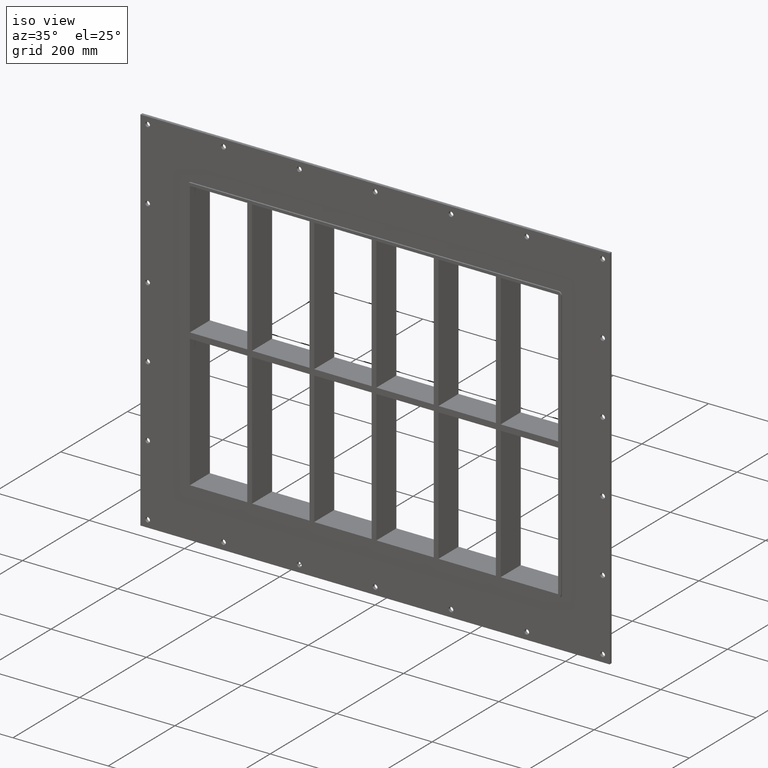
[diagram: clean part render]
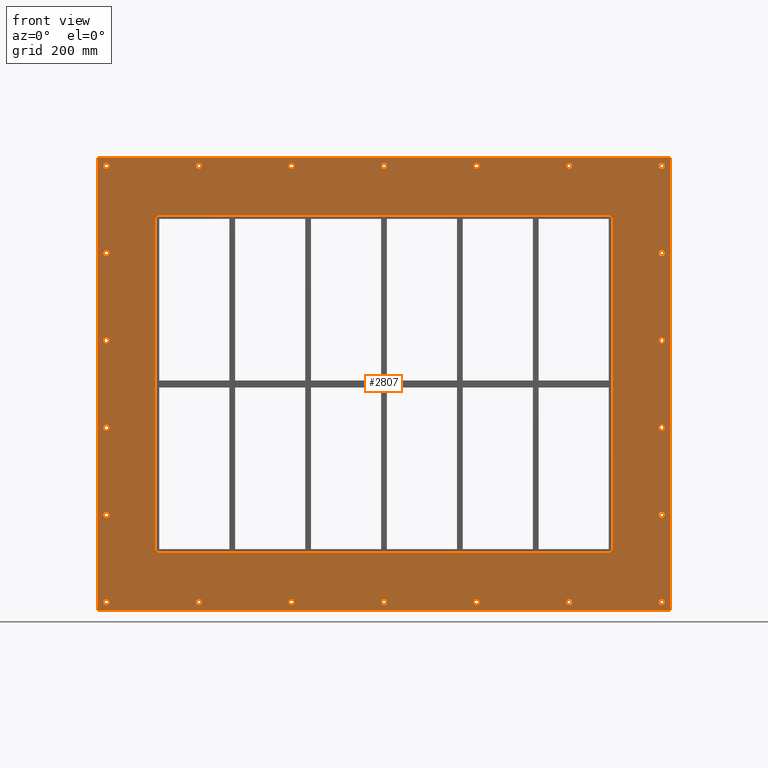
[diagram: tour spotlight — one face highlighted and labeled with its STEP entity id]
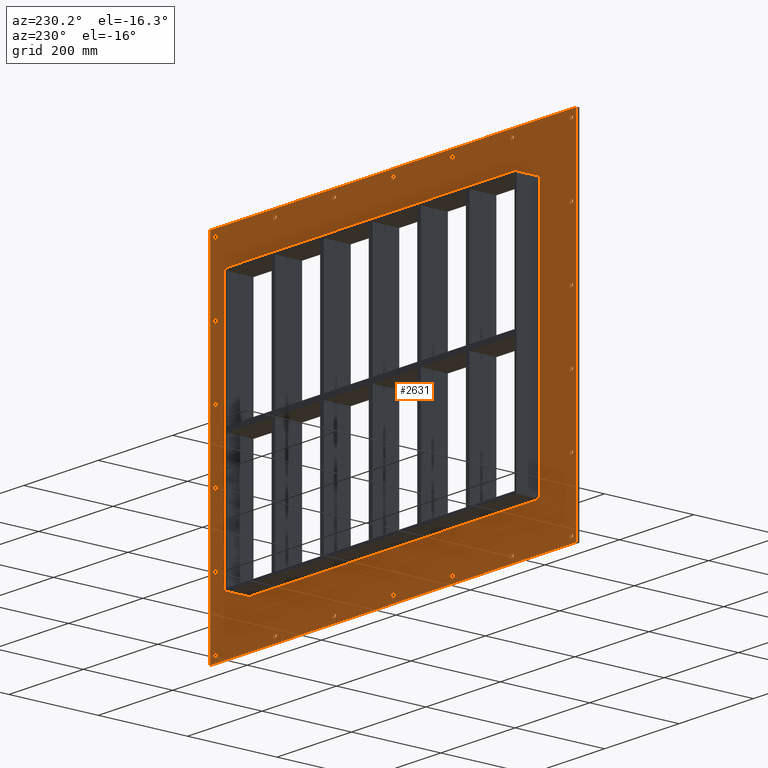
[diagram: tour spotlight — one face highlighted and labeled with its STEP entity id]
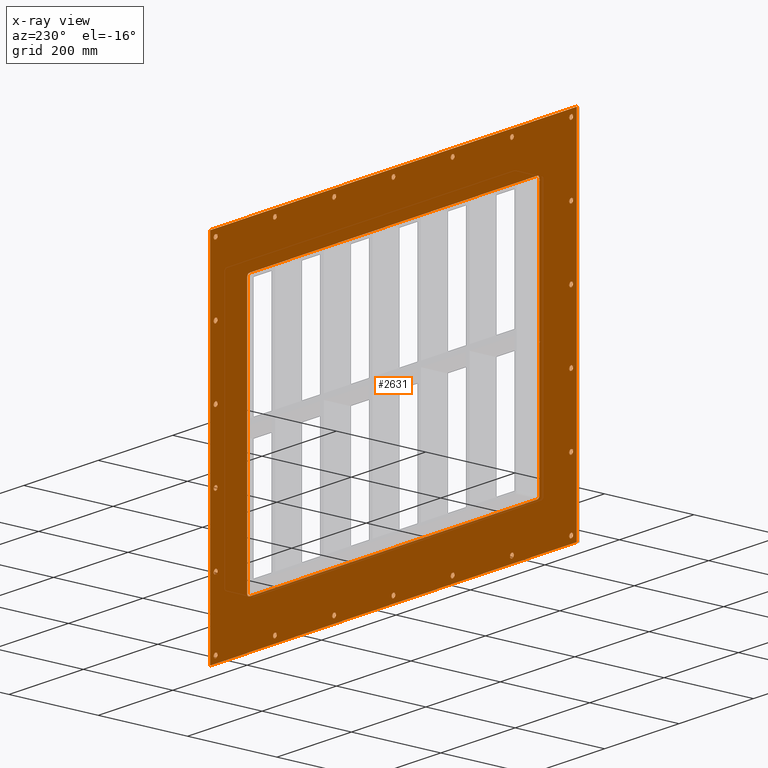
[diagram: x-ray of the same camera — body ghosted, this tour face saturated]
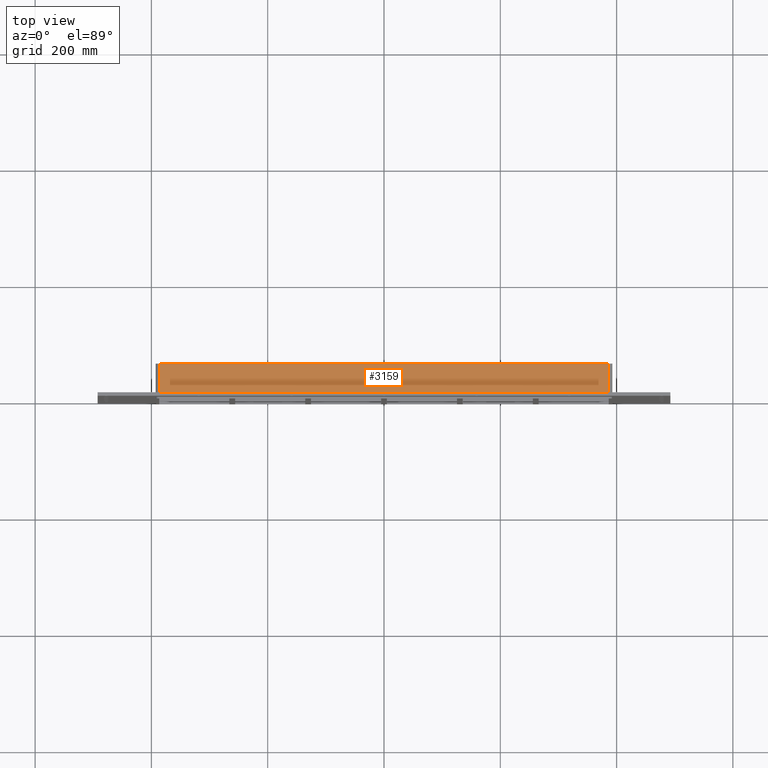
[diagram: tour spotlight — one face highlighted and labeled with its STEP entity id]
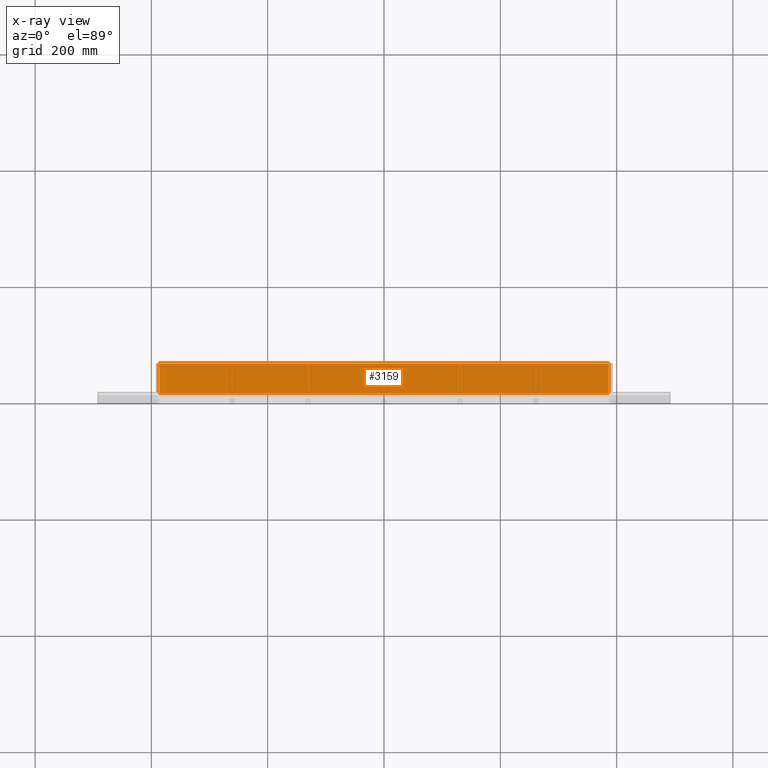
[diagram: x-ray of the same camera — body ghosted, this tour face saturated]
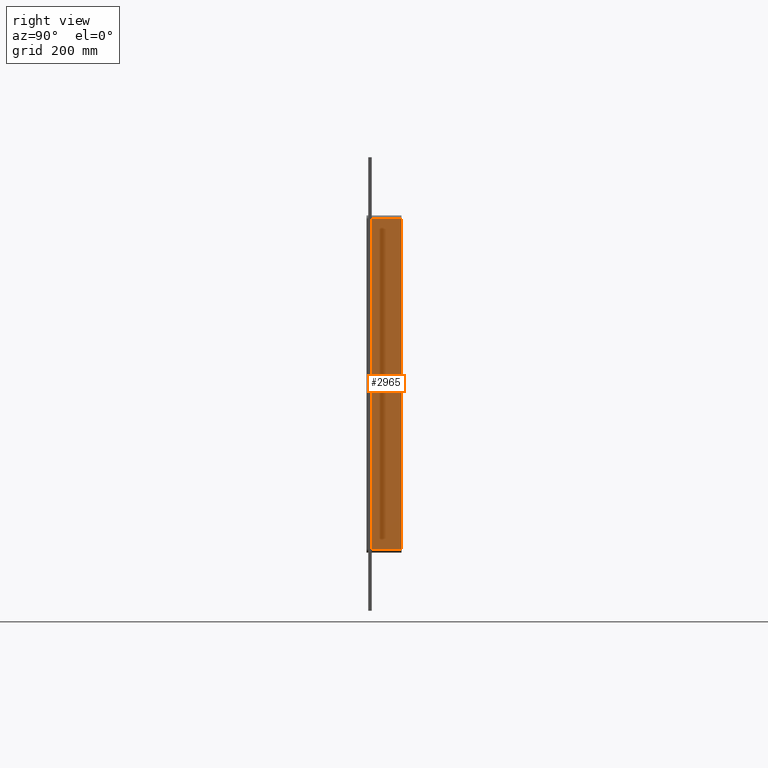
[diagram: tour spotlight — one face highlighted and labeled with its STEP entity id]
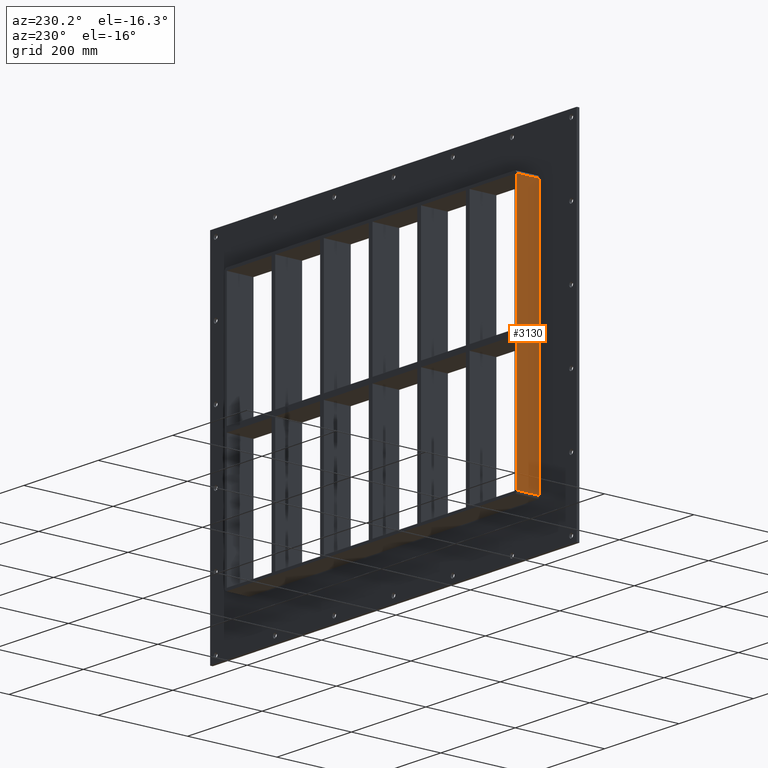
[diagram: tour spotlight — one face highlighted and labeled with its STEP entity id]
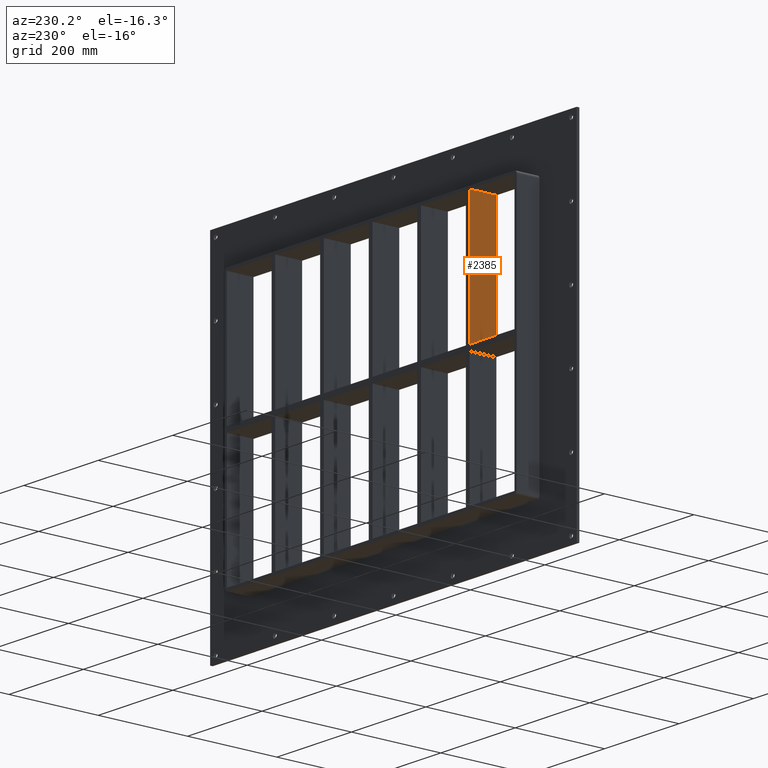
[diagram: tour spotlight — one face highlighted and labeled with its STEP entity id]
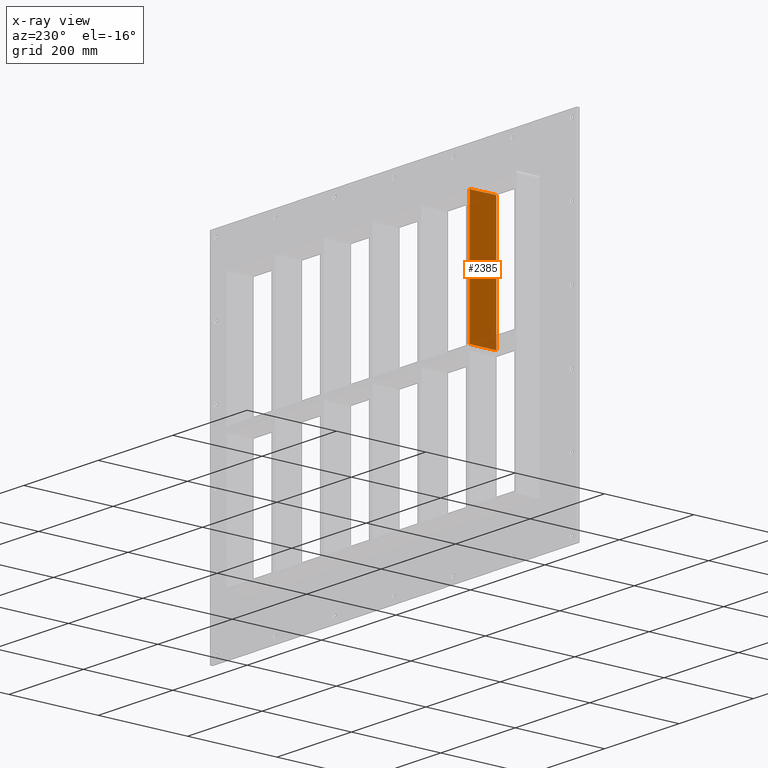
[diagram: x-ray of the same camera — body ghosted, this tour face saturated]
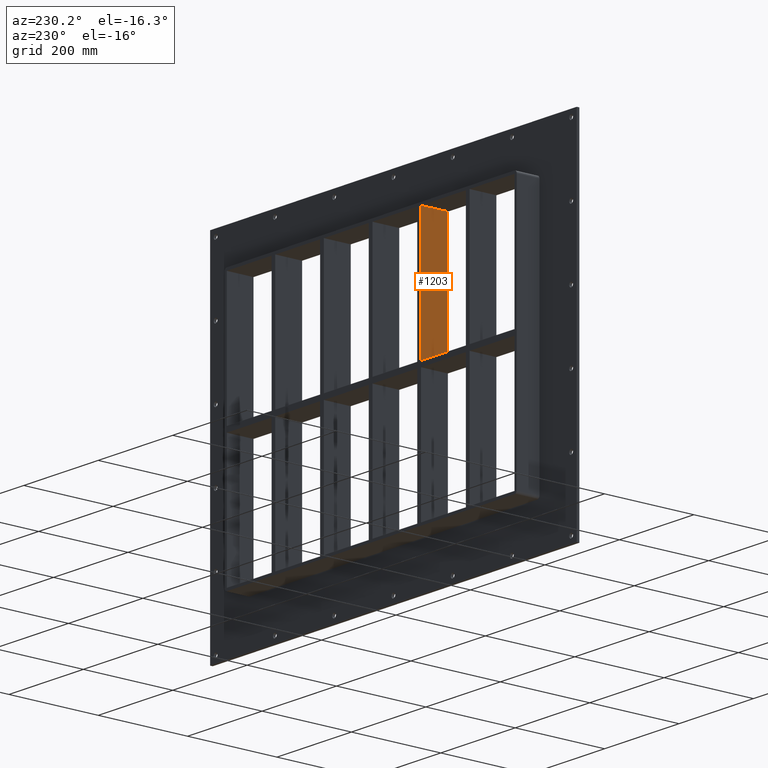
[diagram: tour spotlight — one face highlighted and labeled with its STEP entity id]
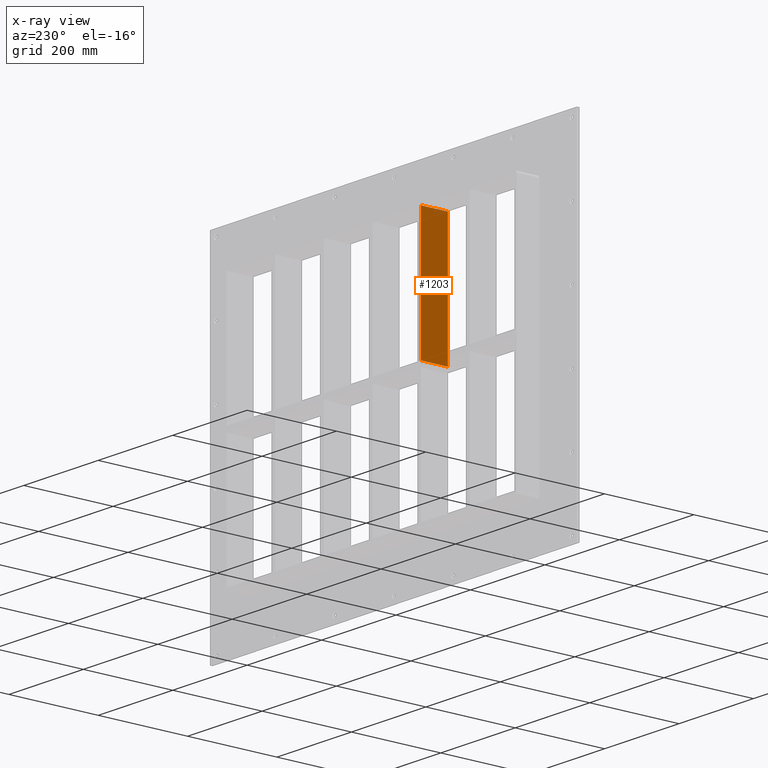
[diagram: x-ray of the same camera — body ghosted, this tour face saturated]
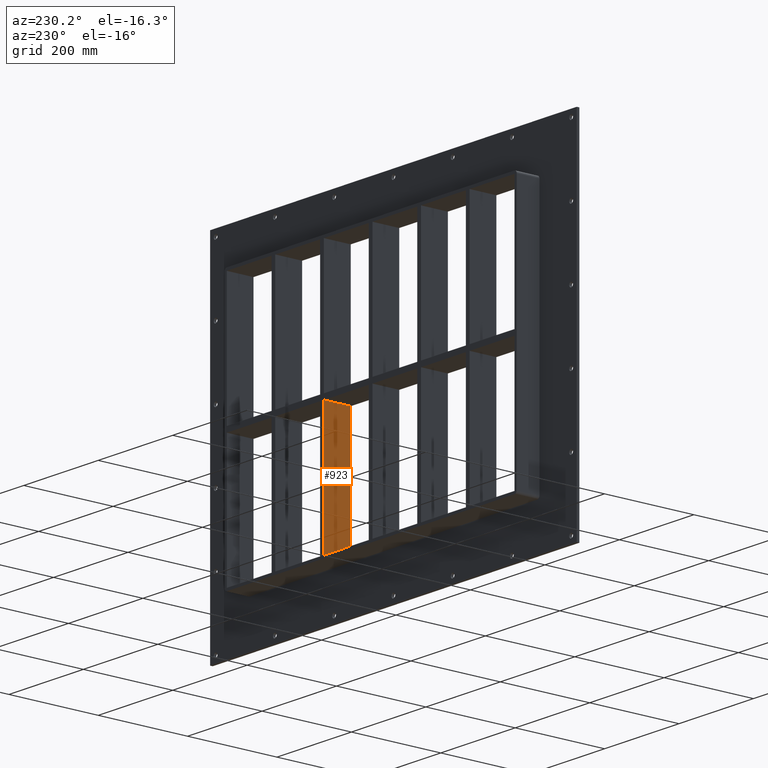
[diagram: tour spotlight — one face highlighted and labeled with its STEP entity id]
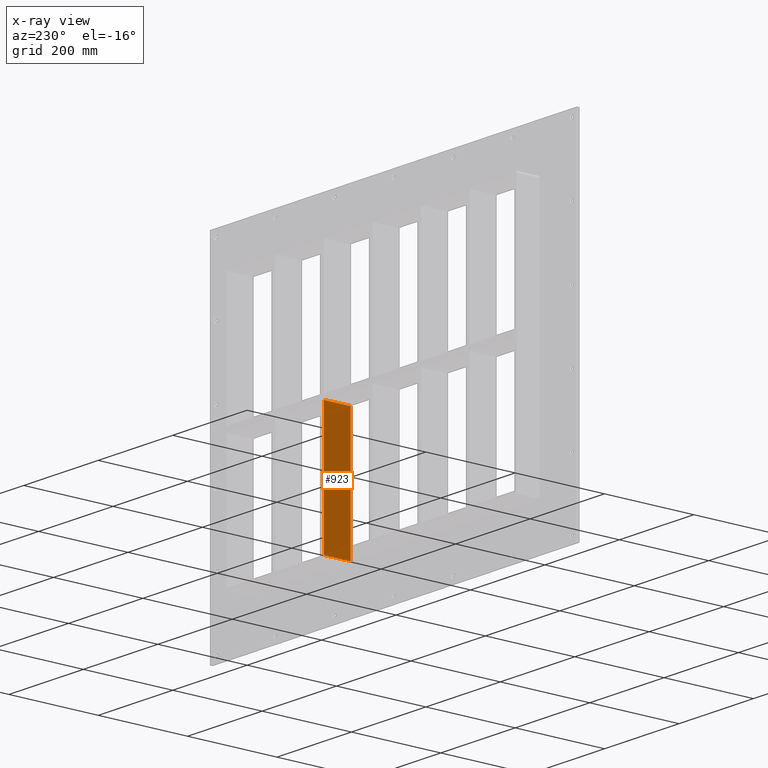
[diagram: x-ray of the same camera — body ghosted, this tour face saturated]
A machine part: a face-by-face anatomy tour. The part has 94 B-rep faces; the first image is the clean iso view, then the 8 largest visible faces are spotlighted one at a time (largest first), each with its STEP entity span.

Face 1 — front view, entity #2807. In plain terms, the highlighted planar face has unit normal (0, 1, 0).
Definition (entity closure, byte-faithful):
#84=CARTESIAN_POINT('',(-472.50000000000028,0.0,-375.0));
#85=VERTEX_POINT('',#84);
#86=CARTESIAN_POINT('',(-477.50000000000028,0.0,-375.0));
#87=DIRECTION('',(0.0,1.0,0.0));
#88=DIRECTION('',(1.0,0.0,0.0));
#89=AXIS2_PLACEMENT_3D('',#86,#87,#88);
#90=CIRCLE('',#89,5.0);
#91=EDGE_CURVE('',#85,#85,#90,.T.);
#112=CARTESIAN_POINT('',(482.6999999999997,0.0,-225.0));
#113=VERTEX_POINT('',#112);
#114=CARTESIAN_POINT('',(477.6999999999997,0.0,-225.0));
#115=DIRECTION('',(0.0,1.0,0.0));
#116=DIRECTION('',(1.0,0.0,0.0));
#117=AXIS2_PLACEMENT_3D('',#114,#115,#116);
#118=CIRCLE('',#117,5.0);
#119=EDGE_CURVE('',#113,#113,#118,.T.);
#140=CARTESIAN_POINT('',(-472.50000000000028,0.0,-225.0));
#141=VERTEX_POINT('',#140);
#142=CARTESIAN_POINT('',(-477.50000000000028,0.0,-225.0));
#143=DIRECTION('',(0.0,1.0,0.0));
#144=DIRECTION('',(1.0,0.0,0.0));
#145=AXIS2_PLACEMENT_3D('',#142,#143,#144);
#146=CIRCLE('',#145,5.0);
#147=EDGE_CURVE('',#141,#141,#146,.T.);
#168=CARTESIAN_POINT('',(482.6999999999997,0.0,-75.0));
#169=VERTEX_POINT('',#168);
#170=CARTESIAN_POINT('',(477.6999999999997,0.0,-75.0));
#171=DIRECTION('',(0.0,1.0,0.0));
#172=DIRECTION('',(1.0,0.0,0.0));
#173=AXIS2_PLACEMENT_3D('',#170,#171,#172);
#174=CIRCLE('',#173,5.0);
#175=EDGE_CURVE('',#169,#169,#174,.T.);
#196=CARTESIAN_POINT('',(-472.50000000000028,0.0,-75.0));
#197=VERTEX_POINT('',#196);
#198=CARTESIAN_POINT('',(-477.50000000000028,0.0,-75.0));
#199=DIRECTION('',(0.0,1.0,0.0));
#200=DIRECTION('',(1.0,0.0,0.0));
#201=AXIS2_PLACEMENT_3D('',#198,#199,#200);
#202=CIRCLE('',#201,5.0);
#203=EDGE_CURVE('',#197,#197,#202,.T.);
#224=CARTESIAN_POINT('',(482.6999999999997,0.0,75.0));
#225=VERTEX_POINT('',#224);
#226=CARTESIAN_POINT('',(477.6999999999997,0.0,75.0));
#227=DIRECTION('',(0.0,1.0,0.0));
#228=DIRECTION('',(1.0,0.0,0.0));
#229=AXIS2_PLACEMENT_3D('',#226,#227,#228);
#230=CIRCLE('',#229,5.0);
#231=EDGE_CURVE('',#225,#225,#230,.T.);
#252=CARTESIAN_POINT('',(-472.50000000000028,0.0,75.0));
#253=VERTEX_POINT('',#252);
#254=CARTESIAN_POINT('',(-477.50000000000028,0.0,75.0));
#255=DIRECTION('',(0.0,1.0,0.0));
#256=DIRECTION('',(1.0,0.0,0.0));
#257=AXIS2_PLACEMENT_3D('',#254,#255,#256);
#258=CIRCLE('',#257,5.0);
#259=EDGE_CURVE('',#253,#253,#258,.T.);
#280=CARTESIAN_POINT('',(482.6999999999997,0.0,225.0));
#281=VERTEX_POINT('',#280);
#282=CARTESIAN_POINT('',(477.6999999999997,0.0,225.0));
#283=DIRECTION('',(0.0,1.0,0.0));
#284=DIRECTION('',(1.0,0.0,0.0));
#285=AXIS2_PLACEMENT_3D('',#282,#283,#284);
#286=CIRCLE('',#285,5.0);
#287=EDGE_CURVE('',#281,#281,#286,.T.);
#308=CARTESIAN_POINT('',(-472.50000000000028,0.0,225.0));
#309=VERTEX_POINT('',#308);
#310=CARTESIAN_POINT('',(-477.50000000000028,0.0,225.0));
#311=DIRECTION('',(0.0,1.0,0.0));
#312=DIRECTION('',(1.0,0.0,0.0));
#313=AXIS2_PLACEMENT_3D('',#310,#311,#312);
#314=CIRCLE('',#313,5.0);
#315=EDGE_CURVE('',#309,#309,#314,.T.);
#336=CARTESIAN_POINT('',(-313.3000000000003,0.0,375.0));
#337=VERTEX_POINT('',#336);
#338=CARTESIAN_POINT('',(-318.3000000000003,0.0,375.0));
#339=DIRECTION('',(0.0,1.0,0.0));
#340=DIRECTION('',(1.0,0.0,0.0));
#341=AXIS2_PLACEMENT_3D('',#338,#339,#340);
#342=CIRCLE('',#341,5.0);
#343=EDGE_CURVE('',#337,#337,#342,.T.);
#364=CARTESIAN_POINT('',(-313.3000000000003,0.0,-375.0));
#365=VERTEX_POINT('',#364);
#366=CARTESIAN_POINT('',(-318.3000000000003,0.0,-375.0));
#367=DIRECTION('',(0.0,1.0,0.0));
#368=DIRECTION('',(1.0,0.0,0.0));
#369=AXIS2_PLACEMENT_3D('',#366,#367,#368);
#370=CIRCLE('',#369,5.0);
#371=EDGE_CURVE('',#365,#365,#370,.T.);
#392=CARTESIAN_POINT('',(-154.10000000000031,0.0,375.0));
#393=VERTEX_POINT('',#392);
#394=CARTESIAN_POINT('',(-159.10000000000031,0.0,375.0));
#395=DIRECTION('',(0.0,1.0,0.0));
#396=DIRECTION('',(1.0,0.0,0.0));
#397=AXIS2_PLACEMENT_3D('',#394,#395,#396);
#398=CIRCLE('',#397,5.0);
#399=EDGE_CURVE('',#393,#393,#398,.T.);
#420=CARTESIAN_POINT('',(-154.10000000000031,0.0,-375.0));
#421=VERTEX_POINT('',#420);
#422=CARTESIAN_POINT('',(-159.10000000000031,0.0,-375.0));
#423=DIRECTION('',(0.0,1.0,0.0));
#424=DIRECTION('',(1.0,0.0,0.0));
#425=AXIS2_PLACEMENT_3D('',#422,#423,#424);
#426=CIRCLE('',#425,5.0);
#427=EDGE_CURVE('',#421,#421,#426,.T.);
#448=CARTESIAN_POINT('',(5.099999999999714,0.0,375.0));
#449=VERTEX_POINT('',#448);
#450=CARTESIAN_POINT('',(0.099999999999714,0.0,375.0));
#451=DIRECTION('',(0.0,1.0,0.0));
#452=DIRECTION('',(1.0,0.0,0.0));
#453=AXIS2_PLACEMENT_3D('',#450,#451,#452);
#454=CIRCLE('',#453,5.0);
#455=EDGE_CURVE('',#449,#449,#454,.T.);
#476=CARTESIAN_POINT('',(5.099999999999714,0.0,-375.0));
#477=VERTEX_POINT('',#476);
#478=CARTESIAN_POINT('',(0.099999999999714,0.0,-375.0));
#479=DIRECTION('',(0.0,1.0,0.0));
#480=DIRECTION('',(1.0,0.0,0.0));
#481=AXIS2_PLACEMENT_3D('',#478,#479,#480);
#482=CIRCLE('',#481,5.0);
#483=EDGE_CURVE('',#477,#477,#482,.T.);
#504=CARTESIAN_POINT('',(164.29999999999964,0.0,375.0));
#505=VERTEX_POINT('',#504);
#506=CARTESIAN_POINT('',(159.29999999999967,0.0,375.0));
#507=DIRECTION('',(0.0,1.0,0.0));
#508=DIRECTION('',(1.0,0.0,0.0));
#509=AXIS2_PLACEMENT_3D('',#506,#507,#508);
#510=CIRCLE('',#509,5.0);
#511=EDGE_CURVE('',#505,#505,#510,.T.);
#532=CARTESIAN_POINT('',(164.29999999999964,0.0,-375.0));
#533=VERTEX_POINT('',#532);
#534=CARTESIAN_POINT('',(159.29999999999967,0.0,-375.0));
#535=DIRECTION('',(0.0,1.0,0.0));
#536=DIRECTION('',(1.0,0.0,0.0));
#537=AXIS2_PLACEMENT_3D('',#534,#535,#536);
#538=CIRCLE('',#537,5.0);
#539=EDGE_CURVE('',#533,#533,#538,.T.);
#560=CARTESIAN_POINT('',(323.49999999999966,0.0,375.0));
#561=VERTEX_POINT('',#560);
#562=CARTESIAN_POINT('',(318.49999999999966,0.0,375.0));
#563=DIRECTION('',(0.0,1.0,0.0));
#564=DIRECTION('',(1.0,0.0,0.0));
#565=AXIS2_PLACEMENT_3D('',#562,#563,#564);
#566=CIRCLE('',#565,5.0);
#567=EDGE_CURVE('',#561,#561,#566,.T.);
#588=CARTESIAN_POINT('',(323.49999999999966,0.0,-375.0));
#589=VERTEX_POINT('',#588);
#590=CARTESIAN_POINT('',(318.49999999999966,0.0,-375.0));
#591=DIRECTION('',(0.0,1.0,0.0));
#592=DIRECTION('',(1.0,0.0,0.0));
#593=AXIS2_PLACEMENT_3D('',#590,#591,#592);
#594=CIRCLE('',#593,5.0);
#595=EDGE_CURVE('',#589,#589,#594,.T.);
#616=CARTESIAN_POINT('',(482.6999999999997,0.0,-375.0));
#617=VERTEX_POINT('',#616);
#618=CARTESIAN_POINT('',(477.6999999999997,0.0,-375.0));
#619=DIRECTION('',(0.0,1.0,0.0));
#620=DIRECTION('',(1.0,0.0,0.0));
#621=AXIS2_PLACEMENT_3D('',#618,#619,#620);
#622=CIRCLE('',#621,5.0);
#623=EDGE_CURVE('',#617,#617,#622,.T.);
#644=CARTESIAN_POINT('',(-472.50000000000028,0.0,375.0));
#645=VERTEX_POINT('',#644);
#646=CARTESIAN_POINT('',(-477.50000000000028,0.0,375.0));
#647=DIRECTION('',(0.0,1.0,0.0));
#648=DIRECTION('',(1.0,0.0,0.0));
#649=AXIS2_PLACEMENT_3D('',#646,#647,#648);
#650=CIRCLE('',#649,5.0);
#651=EDGE_CURVE('',#645,#645,#650,.T.);
#672=CARTESIAN_POINT('',(482.6999999999997,0.0,375.0));
#673=VERTEX_POINT('',#672);
#674=CARTESIAN_POINT('',(477.6999999999997,0.0,375.0));
#675=DIRECTION('',(0.0,1.0,0.0));
#676=DIRECTION('',(1.0,0.0,0.0));
#677=AXIS2_PLACEMENT_3D('',#674,#675,#676);
#678=CIRCLE('',#677,5.0);
#679=EDGE_CURVE('',#673,#673,#678,.T.);
#2632=CARTESIAN_POINT('',(-1.932354E-014,0.0,3.864708E-014));
#2633=DIRECTION('',(0.0,1.0,0.0));
#2634=DIRECTION('',(0.0,0.0,1.0));
#2635=AXIS2_PLACEMENT_3D('',#2632,#2633,#2634);
#2636=PLANE('',#2635);
#2637=CARTESIAN_POINT('',(-492.50000000000028,0.0,390.00000000000006));
#2638=VERTEX_POINT('',#2637);
#2639=CARTESIAN_POINT('',(492.50000000000023,0.0,390.00000000000006));
#2640=VERTEX_POINT('',#2639);
#2641=CARTESIAN_POINT('',(-492.50000000000028,0.0,390.00000000000006));
#2642=DIRECTION('',(1.0,0.0,0.0));
#2643=VECTOR('',#2642,985.00000000000057);
#2644=LINE('',#2641,#2643);
#2645=EDGE_CURVE('',#2638,#2640,#2644,.T.);
#2646=ORIENTED_EDGE('',*,*,#2645,.F.);
#2647=CARTESIAN_POINT('',(-492.50000000000028,0.0,-390.0));
#2648=VERTEX_POINT('',#2647);
#2649=CARTESIAN_POINT('',(-492.50000000000028,0.0,-390.0));
#2650=DIRECTION('',(0.0,0.0,1.0));
#2651=VECTOR('',#2650,780.0);
#2652=LINE('',#2649,#2651);
#2653=EDGE_CURVE('',#2648,#2638,#2652,.T.);
#2654=ORIENTED_EDGE('',*,*,#2653,.F.);
#2655=CARTESIAN_POINT('',(492.50000000000023,0.0,-390.0));
#2656=VERTEX_POINT('',#2655);
#2657=CARTESIAN_POINT('',(492.50000000000023,0.0,-390.0));
#2658=DIRECTION('',(-1.0,0.0,0.0));
#2659=VECTOR('',#2658,985.00000000000057);
#2660=LINE('',#2657,#2659);
#2661=EDGE_CURVE('',#2656,#2648,#2660,.T.);
#2662=ORIENTED_EDGE('',*,*,#2661,.F.);
#2663=CARTESIAN_POINT('',(492.50000000000023,0.0,390.00000000000006));
#2664=DIRECTION('',(0.0,0.0,-1.0));
#2665=VECTOR('',#2664,780.0);
#2666=LINE('',#2663,#2665);
#2667=EDGE_CURVE('',#2640,#2656,#2666,.T.);
#2668=ORIENTED_EDGE('',*,*,#2667,.F.);
#2669=EDGE_LOOP('',(#2646,#2654,#2662,#2668));
#2670=FACE_OUTER_BOUND('',#2669,.T.);
#2671=ORIENTED_EDGE('',*,*,#91,.T.);
#2672=EDGE_LOOP('',(#2671));
#2673=FACE_BOUND('',#2672,.T.);
#2674=ORIENTED_EDGE('',*,*,#119,.T.);
#2675=EDGE_LOOP('',(#2674));
#2676=FACE_BOUND('',#2675,.T.);
#2677=ORIENTED_EDGE('',*,*,#147,.T.);
#2678=EDGE_LOOP('',(#2677));
#2679=FACE_BOUND('',#2678,.T.);
#2680=ORIENTED_EDGE('',*,*,#175,.T.);
#2681=EDGE_LOOP('',(#2680));
#2682=FACE_BOUND('',#2681,.T.);
#2683=ORIENTED_EDGE('',*,*,#203,.T.);
#2684=EDGE_LOOP('',(#2683));
#2685=FACE_BOUND('',#2684,.T.);
#2686=ORIENTED_EDGE('',*,*,#231,.T.);
#2687=EDGE_LOOP('',(#2686));
#2688=FACE_BOUND('',#2687,.T.);
#2689=ORIENTED_EDGE('',*,*,#259,.T.);
#2690=EDGE_LOOP('',(#2689));
#2691=FACE_BOUND('',#2690,.T.);
#2692=ORIENTED_EDGE('',*,*,#287,.T.);
#2693=EDGE_LOOP('',(#2692));
#2694=FACE_BOUND('',#2693,.T.);
#2695=ORIENTED_EDGE('',*,*,#315,.T.);
#2696=EDGE_LOOP('',(#2695));
#2697=FACE_BOUND('',#2696,.T.);
#2698=ORIENTED_EDGE('',*,*,#343,.T.);
#2699=EDGE_LOOP('',(#2698));
#2700=FACE_BOUND('',#2699,.T.);
#2701=ORIENTED_EDGE('',*,*,#371,.T.);
#2702=EDGE_LOOP('',(#2701));
#2703=FACE_BOUND('',#2702,.T.);
#2704=ORIENTED_EDGE('',*,*,#399,.T.);
#2705=EDGE_LOOP('',(#2704));
#2706=FACE_BOUND('',#2705,.T.);
#2707=ORIENTED_EDGE('',*,*,#427,.T.);
#2708=EDGE_LOOP('',(#2707));
#2709=FACE_BOUND('',#2708,.T.);
#2710=ORIENTED_EDGE('',*,*,#455,.T.);
#2711=EDGE_LOOP('',(#2710));
#2712=FACE_BOUND('',#2711,.T.);
#2713=ORIENTED_EDGE('',*,*,#483,.T.);
#2714=EDGE_LOOP('',(#2713));
#2715=FACE_BOUND('',#2714,.T.);
#2716=ORIENTED_EDGE('',*,*,#511,.T.);
#2717=EDGE_LOOP('',(#2716));
#2718=FACE_BOUND('',#2717,.T.);
#2719=ORIENTED_EDGE('',*,*,#539,.T.);
#2720=EDGE_LOOP('',(#2719));
#2721=FACE_BOUND('',#2720,.T.);
#2722=ORIENTED_EDGE('',*,*,#567,.T.);
#2723=EDGE_LOOP('',(#2722));
#2724=FACE_BOUND('',#2723,.T.);
#2725=ORIENTED_EDGE('',*,*,#595,.T.);
#2726=EDGE_LOOP('',(#2725));
#2727=FACE_BOUND('',#2726,.T.);
#2728=ORIENTED_EDGE('',*,*,#623,.T.);
#2729=EDGE_LOOP('',(#2728));
#2730=FACE_BOUND('',#2729,.T.);
#2731=ORIENTED_EDGE('',*,*,#651,.T.);
#2732=EDGE_LOOP('',(#2731));
#2733=FACE_BOUND('',#2732,.T.);
#2734=ORIENTED_EDGE('',*,*,#679,.T.);
#2735=EDGE_LOOP('',(#2734));
#2736=FACE_BOUND('',#2735,.T.);
#2737=CARTESIAN_POINT('',(-392.50000000000011,0.0,-284.0));
#2738=VERTEX_POINT('',#2737);
#2739=CARTESIAN_POINT('',(-386.50000000000006,0.0,-290.00000000000006));
#2740=VERTEX_POINT('',#2739);
#2741=CARTESIAN_POINT('',(-386.50000000000006,0.0,-284.0));
#2742=DIRECTION('',(0.0,-1.0,0.0));
#2743=DIRECTION('',(-0.707106781186552,0.0,-0.707106781186543));
#2744=AXIS2_PLACEMENT_3D('',#2741,#2742,#2743);
#2745=CIRCLE('',#2744,6.0);
#2746=EDGE_CURVE('',#2738,#2740,#2745,.T.);
#2747=ORIENTED_EDGE('',*,*,#2746,.F.);
#2748=CARTESIAN_POINT('',(-392.50000000000011,0.0,284.0));
#2749=VERTEX_POINT('',#2748);
#2750=CARTESIAN_POINT('',(-392.50000000000011,0.0,284.00000000000006));
#2751=DIRECTION('',(0.0,0.0,-1.0));
#2752=VECTOR('',#2751,568.0);
#2753=LINE('',#2750,#2752);
#2754=EDGE_CURVE('',#2749,#2738,#2753,.T.);
#2755=ORIENTED_EDGE('',*,*,#2754,.F.);
#2756=CARTESIAN_POINT('',(-386.50000000000023,0.0,290.00000000000006));
#2757=VERTEX_POINT('',#2756);
#2758=CARTESIAN_POINT('',(-386.50000000000023,0.0,284.0));
#2759=DIRECTION('',(0.0,-1.0,0.0));
#2760=DIRECTION('',(-0.707106781186543,0.0,0.707106781186552));
#2761=AXIS2_PLACEMENT_3D('',#2758,#2759,#2760);
#2762=CIRCLE('',#2761,6.000000000000001);
#2763=EDGE_CURVE('',#2757,#2749,#2762,.T.);
#2764=ORIENTED_EDGE('',*,*,#2763,.F.);
#2765=CARTESIAN_POINT('',(386.49999999999989,0.0,290.00000000000006));
#2766=VERTEX_POINT('',#2765);
#2767=CARTESIAN_POINT('',(386.49999999999994,0.0,290.00000000000006));
#2768=DIRECTION('',(-1.0,0.0,0.0));
#2769=VECTOR('',#2768,773.00000000000011);
#2770=LINE('',#2767,#2769);
#2771=EDGE_CURVE('',#2766,#2757,#2770,.T.);
#2772=ORIENTED_EDGE('',*,*,#2771,.F.);
#2773=CARTESIAN_POINT('',(392.5,0.0,284.0));
#2774=VERTEX_POINT('',#2773);
#2775=CARTESIAN_POINT('',(386.49999999999989,0.0,284.0));
#2776=DIRECTION('',(0.0,-1.0,0.0));
#2777=DIRECTION('',(0.707106781186552,0.0,0.707106781186543));
#2778=AXIS2_PLACEMENT_3D('',#2775,#2776,#2777);
#2779=CIRCLE('',#2778,6.0);
#2780=EDGE_CURVE('',#2774,#2766,#2779,.T.);
#2781=ORIENTED_EDGE('',*,*,#2780,.F.);
#2782=CARTESIAN_POINT('',(392.5,0.0,-284.0));
#2783=VERTEX_POINT('',#2782);
#2784=CARTESIAN_POINT('',(392.5,0.0,-284.0));
#2785=DIRECTION('',(0.0,0.0,1.0));
#2786=VECTOR('',#2785,568.0);
#2787=LINE('',#2784,#2786);
#2788=EDGE_CURVE('',#2783,#2774,#2787,.T.);
#2789=ORIENTED_EDGE('',*,*,#2788,.F.);
#2790=CARTESIAN_POINT('',(386.50000000000006,0.0,-290.00000000000006));
#2791=VERTEX_POINT('',#2790);
#2792=CARTESIAN_POINT('',(386.50000000000006,0.0,-284.0));
#2793=DIRECTION('',(0.0,-1.0,0.0));
#2794=DIRECTION('',(0.707106781186543,0.0,-0.707106781186552));
#2795=AXIS2_PLACEMENT_3D('',#2792,#2793,#2794);
#2796=CIRCLE('',#2795,6.000000000000001);
#2797=EDGE_CURVE('',#2791,#2783,#2796,.T.);
#2798=ORIENTED_EDGE('',*,*,#2797,.F.);
#2799=CARTESIAN_POINT('',(-386.5,0.0,-290.00000000000006));
#2800=DIRECTION('',(1.0,0.0,0.0));
#2801=VECTOR('',#2800,773.0);
#2802=LINE('',#2799,#2801);
#2803=EDGE_CURVE('',#2740,#2791,#2802,.T.);
#2804=ORIENTED_EDGE('',*,*,#2803,.F.);
#2805=EDGE_LOOP('',(#2747,#2755,#2764,#2772,#2781,#2789,#2798,#2804));
#2806=FACE_BOUND('',#2805,.T.);
#2807=ADVANCED_FACE('',(#2670,#2673,#2676,#2679,#2682,#2685,#2688,#2691,#2694,#2697,#2700,#2703,#2706,#2709,#2712,#2715,#2718,#2721,#2724,#2727,#2730,#2733,#2736,#2806),#2636,.F.);

Face 2 — auxiliary view, entity #2631. An x-ray twin of the same camera follows (body ghosted, this face saturated) — the face is partly hidden behind the body. In plain terms, the highlighted planar face has unit normal (0, 1, 0).
Definition (entity closure, byte-faithful):
#73=CARTESIAN_POINT('',(-482.50000000000028,5.999999999999943,-375.0));
#74=VERTEX_POINT('',#73);
#75=CARTESIAN_POINT('',(-477.50000000000028,5.999999999999943,-375.0));
#76=DIRECTION('',(0.0,-1.0,0.0));
#77=DIRECTION('',(1.0,0.0,0.0));
#78=AXIS2_PLACEMENT_3D('',#75,#76,#77);
#79=CIRCLE('',#78,5.0);
#80=EDGE_CURVE('',#74,#74,#79,.T.);
#101=CARTESIAN_POINT('',(472.6999999999997,5.999999999999943,-225.0));
#102=VERTEX_POINT('',#101);
#103=CARTESIAN_POINT('',(477.6999999999997,5.999999999999943,-225.0));
#104=DIRECTION('',(0.0,-1.0,0.0));
#105=DIRECTION('',(1.0,0.0,0.0));
#106=AXIS2_PLACEMENT_3D('',#103,#104,#105);
#107=CIRCLE('',#106,5.0);
#108=EDGE_CURVE('',#102,#102,#107,.T.);
#129=CARTESIAN_POINT('',(-482.50000000000028,5.999999999999943,-225.0));
#130=VERTEX_POINT('',#129);
#131=CARTESIAN_POINT('',(-477.50000000000028,5.999999999999943,-225.0));
#132=DIRECTION('',(0.0,-1.0,0.0));
#133=DIRECTION('',(1.0,0.0,0.0));
#134=AXIS2_PLACEMENT_3D('',#131,#132,#133);
#135=CIRCLE('',#134,5.0);
#136=EDGE_CURVE('',#130,#130,#135,.T.);
#157=CARTESIAN_POINT('',(472.6999999999997,5.999999999999943,-75.0));
#158=VERTEX_POINT('',#157);
#159=CARTESIAN_POINT('',(477.6999999999997,5.999999999999943,-75.0));
#160=DIRECTION('',(0.0,-1.0,0.0));
#161=DIRECTION('',(1.0,0.0,0.0));
#162=AXIS2_PLACEMENT_3D('',#159,#160,#161);
#163=CIRCLE('',#162,5.0);
#164=EDGE_CURVE('',#158,#158,#163,.T.);
#185=CARTESIAN_POINT('',(-482.50000000000028,5.999999999999943,-75.0));
#186=VERTEX_POINT('',#185);
#187=CARTESIAN_POINT('',(-477.50000000000028,5.999999999999943,-75.0));
#188=DIRECTION('',(0.0,-1.0,0.0));
#189=DIRECTION('',(1.0,0.0,0.0));
#190=AXIS2_PLACEMENT_3D('',#187,#188,#189);
#191=CIRCLE('',#190,5.0);
#192=EDGE_CURVE('',#186,#186,#191,.T.);
#213=CARTESIAN_POINT('',(472.6999999999997,5.999999999999943,75.0));
#214=VERTEX_POINT('',#213);
#215=CARTESIAN_POINT('',(477.6999999999997,5.999999999999943,75.0));
#216=DIRECTION('',(0.0,-1.0,0.0));
#217=DIRECTION('',(1.0,0.0,0.0));
#218=AXIS2_PLACEMENT_3D('',#215,#216,#217);
#219=CIRCLE('',#218,5.0);
#220=EDGE_CURVE('',#214,#214,#219,.T.);
#241=CARTESIAN_POINT('',(-482.50000000000028,5.999999999999943,75.0));
#242=VERTEX_POINT('',#241);
#243=CARTESIAN_POINT('',(-477.50000000000028,5.999999999999943,75.0));
#244=DIRECTION('',(0.0,-1.0,0.0));
#245=DIRECTION('',(1.0,0.0,0.0));
#246=AXIS2_PLACEMENT_3D('',#243,#244,#245);
#247=CIRCLE('',#246,5.0);
#248=EDGE_CURVE('',#242,#242,#247,.T.);
#269=CARTESIAN_POINT('',(472.6999999999997,5.999999999999943,225.0));
#270=VERTEX_POINT('',#269);
#271=CARTESIAN_POINT('',(477.6999999999997,5.999999999999943,225.0));
#272=DIRECTION('',(0.0,-1.0,0.0));
#273=DIRECTION('',(1.0,0.0,0.0));
#274=AXIS2_PLACEMENT_3D('',#271,#272,#273);
#275=CIRCLE('',#274,5.0);
#276=EDGE_CURVE('',#270,#270,#275,.T.);
#297=CARTESIAN_POINT('',(-482.50000000000028,5.999999999999943,225.0));
#298=VERTEX_POINT('',#297);
#299=CARTESIAN_POINT('',(-477.50000000000028,5.999999999999943,225.0));
#300=DIRECTION('',(0.0,-1.0,0.0));
#301=DIRECTION('',(1.0,0.0,0.0));
#302=AXIS2_PLACEMENT_3D('',#299,#300,#301);
#303=CIRCLE('',#302,5.0);
#304=EDGE_CURVE('',#298,#298,#303,.T.);
#325=CARTESIAN_POINT('',(-323.3000000000003,5.999999999999943,375.0));
#326=VERTEX_POINT('',#325);
#327=CARTESIAN_POINT('',(-318.3000000000003,5.999999999999943,375.0));
#328=DIRECTION('',(0.0,-1.0,0.0));
#329=DIRECTION('',(1.0,0.0,0.0));
#330=AXIS2_PLACEMENT_3D('',#327,#328,#329);
#331=CIRCLE('',#330,5.0);
#332=EDGE_CURVE('',#326,#326,#331,.T.);
#353=CARTESIAN_POINT('',(-323.3000000000003,5.999999999999943,-375.0));
#354=VERTEX_POINT('',#353);
#355=CARTESIAN_POINT('',(-318.3000000000003,5.999999999999943,-375.0));
#356=DIRECTION('',(0.0,-1.0,0.0));
#357=DIRECTION('',(1.0,0.0,0.0));
#358=AXIS2_PLACEMENT_3D('',#355,#356,#357);
#359=CIRCLE('',#358,5.0);
#360=EDGE_CURVE('',#354,#354,#359,.T.);
#381=CARTESIAN_POINT('',(-164.10000000000031,5.999999999999943,375.0));
#382=VERTEX_POINT('',#381);
#383=CARTESIAN_POINT('',(-159.10000000000031,5.999999999999943,375.0));
#384=DIRECTION('',(0.0,-1.0,0.0));
#385=DIRECTION('',(1.0,0.0,0.0));
#386=AXIS2_PLACEMENT_3D('',#383,#384,#385);
#387=CIRCLE('',#386,5.0);
#388=EDGE_CURVE('',#382,#382,#387,.T.);
#409=CARTESIAN_POINT('',(-164.10000000000031,5.999999999999943,-375.0));
#410=VERTEX_POINT('',#409);
#411=CARTESIAN_POINT('',(-159.10000000000031,5.999999999999943,-375.0));
#412=DIRECTION('',(0.0,-1.0,0.0));
#413=DIRECTION('',(1.0,0.0,0.0));
#414=AXIS2_PLACEMENT_3D('',#411,#412,#413);
#415=CIRCLE('',#414,5.0);
#416=EDGE_CURVE('',#410,#410,#415,.T.);
#437=CARTESIAN_POINT('',(-4.900000000000286,5.999999999999943,375.0));
#438=VERTEX_POINT('',#437);
#439=CARTESIAN_POINT('',(0.099999999999714,5.999999999999943,375.0));
#440=DIRECTION('',(0.0,-1.0,0.0));
#441=DIRECTION('',(1.0,0.0,0.0));
#442=AXIS2_PLACEMENT_3D('',#439,#440,#441);
#443=CIRCLE('',#442,5.0);
#444=EDGE_CURVE('',#438,#438,#443,.T.);
#465=CARTESIAN_POINT('',(-4.900000000000286,5.999999999999943,-375.0));
#466=VERTEX_POINT('',#465);
#467=CARTESIAN_POINT('',(0.099999999999714,5.999999999999943,-375.0));
#468=DIRECTION('',(0.0,-1.0,0.0));
#469=DIRECTION('',(1.0,0.0,0.0));
#470=AXIS2_PLACEMENT_3D('',#467,#468,#469);
#471=CIRCLE('',#470,5.0);
#472=EDGE_CURVE('',#466,#466,#471,.T.);
#493=CARTESIAN_POINT('',(154.29999999999967,5.999999999999943,375.0));
#494=VERTEX_POINT('',#493);
#495=CARTESIAN_POINT('',(159.29999999999967,5.999999999999943,375.0));
#496=DIRECTION('',(0.0,-1.0,0.0));
#497=DIRECTION('',(1.0,0.0,0.0));
#498=AXIS2_PLACEMENT_3D('',#495,#496,#497);
#499=CIRCLE('',#498,5.0);
#500=EDGE_CURVE('',#494,#494,#499,.T.);
#521=CARTESIAN_POINT('',(154.29999999999967,5.999999999999943,-375.0));
#522=VERTEX_POINT('',#521);
#523=CARTESIAN_POINT('',(159.29999999999967,5.999999999999943,-375.0));
#524=DIRECTION('',(0.0,-1.0,0.0));
#525=DIRECTION('',(1.0,0.0,0.0));
#526=AXIS2_PLACEMENT_3D('',#523,#524,#525);
#527=CIRCLE('',#526,5.0);
#528=EDGE_CURVE('',#522,#522,#527,.T.);
#549=CARTESIAN_POINT('',(313.49999999999966,5.999999999999943,375.0));
#550=VERTEX_POINT('',#549);
#551=CARTESIAN_POINT('',(318.49999999999966,5.999999999999943,375.0));
#552=DIRECTION('',(0.0,-1.0,0.0));
#553=DIRECTION('',(1.0,0.0,0.0));
#554=AXIS2_PLACEMENT_3D('',#551,#552,#553);
#555=CIRCLE('',#554,5.0);
#556=EDGE_CURVE('',#550,#550,#555,.T.);
#577=CARTESIAN_POINT('',(313.49999999999966,5.999999999999943,-375.0));
#578=VERTEX_POINT('',#577);
#579=CARTESIAN_POINT('',(318.49999999999966,5.999999999999943,-375.0));
#580=DIRECTION('',(0.0,-1.0,0.0));
#581=DIRECTION('',(1.0,0.0,0.0));
#582=AXIS2_PLACEMENT_3D('',#579,#580,#581);
#583=CIRCLE('',#582,5.0);
#584=EDGE_CURVE('',#578,#578,#583,.T.);
#605=CARTESIAN_POINT('',(472.6999999999997,5.999999999999943,-375.0));
#606=VERTEX_POINT('',#605);
#607=CARTESIAN_POINT('',(477.6999999999997,5.999999999999943,-375.0));
#608=DIRECTION('',(0.0,-1.0,0.0));
#609=DIRECTION('',(1.0,0.0,0.0));
#610=AXIS2_PLACEMENT_3D('',#607,#608,#609);
#611=CIRCLE('',#610,5.0);
#612=EDGE_CURVE('',#606,#606,#611,.T.);
#633=CARTESIAN_POINT('',(-482.50000000000028,5.999999999999943,375.0));
#634=VERTEX_POINT('',#633);
#635=CARTESIAN_POINT('',(-477.50000000000028,5.999999999999943,375.0));
#636=DIRECTION('',(0.0,-1.0,0.0));
#637=DIRECTION('',(1.0,0.0,0.0));
#638=AXIS2_PLACEMENT_3D('',#635,#636,#637);
#639=CIRCLE('',#638,5.0);
#640=EDGE_CURVE('',#634,#634,#639,.T.);
#661=CARTESIAN_POINT('',(472.6999999999997,5.999999999999943,375.0));
#662=VERTEX_POINT('',#661);
#663=CARTESIAN_POINT('',(477.6999999999997,5.999999999999943,375.0));
#664=DIRECTION('',(0.0,-1.0,0.0));
#665=DIRECTION('',(1.0,0.0,0.0));
#666=AXIS2_PLACEMENT_3D('',#663,#664,#665);
#667=CIRCLE('',#666,5.0);
#668=EDGE_CURVE('',#662,#662,#667,.T.);
#2456=CARTESIAN_POINT('',(-1.932354E-014,6.000000000000001,3.864708E-014));
#2457=DIRECTION('',(0.0,1.0,0.0));
#2458=DIRECTION('',(0.0,0.0,1.0));
#2459=AXIS2_PLACEMENT_3D('',#2456,#2457,#2458);
#2460=PLANE('',#2459);
#2461=CARTESIAN_POINT('',(-492.50000000000028,6.000000000000001,390.00000000000006));
#2462=VERTEX_POINT('',#2461);
#2463=CARTESIAN_POINT('',(492.50000000000028,6.000000000000001,390.00000000000006));
#2464=VERTEX_POINT('',#2463);
#2465=CARTESIAN_POINT('',(-492.50000000000028,6.000000000000001,390.00000000000006));
#2466=DIRECTION('',(1.0,0.0,0.0));
#2467=VECTOR('',#2466,985.00000000000057);
#2468=LINE('',#2465,#2467);
#2469=EDGE_CURVE('',#2462,#2464,#2468,.T.);
#2470=ORIENTED_EDGE('',*,*,#2469,.T.);
#2471=CARTESIAN_POINT('',(492.50000000000028,6.000000000000001,-389.99999999999994));
#2472=VERTEX_POINT('',#2471);
#2473=CARTESIAN_POINT('',(492.50000000000023,6.000000000000001,390.00000000000006));
#2474=DIRECTION('',(0.0,0.0,-1.0));
#2475=VECTOR('',#2474,780.0);
#2476=LINE('',#2473,#2475);
#2477=EDGE_CURVE('',#2464,#2472,#2476,.T.);
#2478=ORIENTED_EDGE('',*,*,#2477,.T.);
#2479=CARTESIAN_POINT('',(-492.50000000000028,6.000000000000001,-389.99999999999994));
#2480=VERTEX_POINT('',#2479);
#2481=CARTESIAN_POINT('',(492.50000000000023,6.000000000000001,-390.0));
#2482=DIRECTION('',(-1.0,0.0,0.0));
#2483=VECTOR('',#2482,985.00000000000057);
#2484=LINE('',#2481,#2483);
#2485=EDGE_CURVE('',#2472,#2480,#2484,.T.);
#2486=ORIENTED_EDGE('',*,*,#2485,.T.);
#2487=CARTESIAN_POINT('',(-492.50000000000028,6.000000000000001,-390.0));
#2488=DIRECTION('',(0.0,0.0,1.0));
#2489=VECTOR('',#2488,780.0);
#2490=LINE('',#2487,#2489);
#2491=EDGE_CURVE('',#2480,#2462,#2490,.T.);
#2492=ORIENTED_EDGE('',*,*,#2491,.T.);
#2493=EDGE_LOOP('',(#2470,#2478,#2486,#2492));
#2494=FACE_OUTER_BOUND('',#2493,.T.);
#2495=ORIENTED_EDGE('',*,*,#80,.T.);
#2496=EDGE_LOOP('',(#2495));
#2497=FACE_BOUND('',#2496,.T.);
#2498=ORIENTED_EDGE('',*,*,#108,.T.);
#2499=EDGE_LOOP('',(#2498));
#2500=FACE_BOUND('',#2499,.T.);
#2501=ORIENTED_EDGE('',*,*,#136,.T.);
#2502=EDGE_LOOP('',(#2501));
#2503=FACE_BOUND('',#2502,.T.);
#2504=ORIENTED_EDGE('',*,*,#164,.T.);
#2505=EDGE_LOOP('',(#2504));
#2506=FACE_BOUND('',#2505,.T.);
#2507=ORIENTED_EDGE('',*,*,#192,.T.);
#2508=EDGE_LOOP('',(#2507));
#2509=FACE_BOUND('',#2508,.T.);
#2510=ORIENTED_EDGE('',*,*,#220,.T.);
#2511=EDGE_LOOP('',(#2510));
#2512=FACE_BOUND('',#2511,.T.);
#2513=ORIENTED_EDGE('',*,*,#248,.T.);
#2514=EDGE_LOOP('',(#2513));
#2515=FACE_BOUND('',#2514,.T.);
#2516=ORIENTED_EDGE('',*,*,#276,.T.);
#2517=EDGE_LOOP('',(#2516));
#2518=FACE_BOUND('',#2517,.T.);
#2519=ORIENTED_EDGE('',*,*,#304,.T.);
#2520=EDGE_LOOP('',(#2519));
#2521=FACE_BOUND('',#2520,.T.);
#2522=ORIENTED_EDGE('',*,*,#332,.T.);
#2523=EDGE_LOOP('',(#2522));
#2524=FACE_BOUND('',#2523,.T.);
#2525=ORIENTED_EDGE('',*,*,#360,.T.);
#2526=EDGE_LOOP('',(#2525));
#2527=FACE_BOUND('',#2526,.T.);
#2528=ORIENTED_EDGE('',*,*,#388,.T.);
#2529=EDGE_LOOP('',(#2528));
#2530=FACE_BOUND('',#2529,.T.);
#2531=ORIENTED_EDGE('',*,*,#416,.T.);
#2532=EDGE_LOOP('',(#2531));
#2533=FACE_BOUND('',#2532,.T.);
#2534=ORIENTED_EDGE('',*,*,#444,.T.);
#2535=EDGE_LOOP('',(#2534));
#2536=FACE_BOUND('',#2535,.T.);
#2537=ORIENTED_EDGE('',*,*,#472,.T.);
#2538=EDGE_LOOP('',(#2537));
#2539=FACE_BOUND('',#2538,.T.);
#2540=ORIENTED_EDGE('',*,*,#500,.T.);
#2541=EDGE_LOOP('',(#2540));
#2542=FACE_BOUND('',#2541,.T.);
#2543=ORIENTED_EDGE('',*,*,#528,.T.);
#2544=EDGE_LOOP('',(#2543));
#2545=FACE_BOUND('',#2544,.T.);
#2546=ORIENTED_EDGE('',*,*,#556,.T.);
#2547=EDGE_LOOP('',(#2546));
#2548=FACE_BOUND('',#2547,.T.);
#2549=ORIENTED_EDGE('',*,*,#584,.T.);
#2550=EDGE_LOOP('',(#2549));
#2551=FACE_BOUND('',#2550,.T.);
#2552=ORIENTED_EDGE('',*,*,#612,.T.);
#2553=EDGE_LOOP('',(#2552));
#2554=FACE_BOUND('',#2553,.T.);
#2555=ORIENTED_EDGE('',*,*,#640,.T.);
#2556=EDGE_LOOP('',(#2555));
#2557=FACE_BOUND('',#2556,.T.);
#2558=ORIENTED_EDGE('',*,*,#668,.T.);
#2559=EDGE_LOOP('',(#2558));
#2560=FACE_BOUND('',#2559,.T.);
#2561=CARTESIAN_POINT('',(-386.50000000000006,6.000000000000001,-290.00000000000006));
#2562=VERTEX_POINT('',#2561);
#2563=CARTESIAN_POINT('',(-392.50000000000011,6.000000000000001,-284.0));
#2564=VERTEX_POINT('',#2563);
#2565=CARTESIAN_POINT('',(-386.50000000000006,6.000000000000001,-284.0));
#2566=DIRECTION('',(0.0,1.0,0.0));
#2567=DIRECTION('',(-0.707106781186552,0.0,-0.707106781186543));
#2568=AXIS2_PLACEMENT_3D('',#2565,#2566,#2567);
#2569=CIRCLE('',#2568,6.0);
#2570=EDGE_CURVE('',#2562,#2564,#2569,.T.);
#2571=ORIENTED_EDGE('',*,*,#2570,.F.);
#2572=CARTESIAN_POINT('',(386.50000000000006,6.000000000000001,-290.00000000000006));
#2573=VERTEX_POINT('',#2572);
#2574=CARTESIAN_POINT('',(386.50000000000006,6.000000000000001,-290.00000000000006));
#2575=DIRECTION('',(-1.0,0.0,0.0));
#2576=VECTOR('',#2575,773.0);
#2577=LINE('',#2574,#2576);
#2578=EDGE_CURVE('',#2573,#2562,#2577,.T.);
#2579=ORIENTED_EDGE('',*,*,#2578,.F.);
#2580=CARTESIAN_POINT('',(392.5,6.000000000000001,-284.0));
#2581=VERTEX_POINT('',#2580);
#2582=CARTESIAN_POINT('',(386.50000000000006,6.000000000000001,-284.0));
#2583=DIRECTION('',(0.0,1.0,0.0));
#2584=DIRECTION('',(0.707106781186543,0.0,-0.707106781186552));
#2585=AXIS2_PLACEMENT_3D('',#2582,#2583,#2584);
#2586=CIRCLE('',#2585,6.000000000000001);
#2587=EDGE_CURVE('',#2581,#2573,#2586,.T.);
#2588=ORIENTED_EDGE('',*,*,#2587,.F.);
#2589=CARTESIAN_POINT('',(392.5,6.000000000000001,284.0));
#2590=VERTEX_POINT('',#2589);
#2591=CARTESIAN_POINT('',(392.5,6.000000000000001,284.0));
#2592=DIRECTION('',(0.0,0.0,-1.0));
#2593=VECTOR('',#2592,568.0);
#2594=LINE('',#2591,#2593);
#2595=EDGE_CURVE('',#2590,#2581,#2594,.T.);
#2596=ORIENTED_EDGE('',*,*,#2595,.F.);
#2597=CARTESIAN_POINT('',(386.49999999999989,6.000000000000001,290.00000000000006));
#2598=VERTEX_POINT('',#2597);
#2599=CARTESIAN_POINT('',(386.49999999999989,6.000000000000001,284.0));
#2600=DIRECTION('',(0.0,1.0,0.0));
#2601=DIRECTION('',(0.707106781186552,0.0,0.707106781186543));
#2602=AXIS2_PLACEMENT_3D('',#2599,#2600,#2601);
#2603=CIRCLE('',#2602,6.0);
#2604=EDGE_CURVE('',#2598,#2590,#2603,.T.);
#2605=ORIENTED_EDGE('',*,*,#2604,.F.);
#2606=CARTESIAN_POINT('',(-386.50000000000023,6.000000000000001,290.00000000000006));
#2607=VERTEX_POINT('',#2606);
#2608=CARTESIAN_POINT('',(-386.50000000000017,6.000000000000001,290.00000000000006));
#2609=DIRECTION('',(1.0,0.0,0.0));
#2610=VECTOR('',#2609,773.00000000000011);
#2611=LINE('',#2608,#2610);
#2612=EDGE_CURVE('',#2607,#2598,#2611,.T.);
#2613=ORIENTED_EDGE('',*,*,#2612,.F.);
#2614=CARTESIAN_POINT('',(-392.50000000000011,6.000000000000001,284.0));
#2615=VERTEX_POINT('',#2614);
#2616=CARTESIAN_POINT('',(-386.50000000000023,6.000000000000001,284.0));
#2617=DIRECTION('',(0.0,1.0,0.0));
#2618=DIRECTION('',(-0.707106781186543,0.0,0.707106781186552));
#2619=AXIS2_PLACEMENT_3D('',#2616,#2617,#2618);
#2620=CIRCLE('',#2619,6.000000000000001);
#2621=EDGE_CURVE('',#2615,#2607,#2620,.T.);
#2622=ORIENTED_EDGE('',*,*,#2621,.F.);
#2623=CARTESIAN_POINT('',(-392.50000000000011,6.000000000000001,-284.0));
#2624=DIRECTION('',(0.0,0.0,1.0));
#2625=VECTOR('',#2624,568.0);
#2626=LINE('',#2623,#2625);
#2627=EDGE_CURVE('',#2564,#2615,#2626,.T.);
#2628=ORIENTED_EDGE('',*,*,#2627,.F.);
#2629=EDGE_LOOP('',(#2571,#2579,#2588,#2596,#2605,#2613,#2622,#2628));
#2630=FACE_BOUND('',#2629,.T.);
#2631=ADVANCED_FACE('',(#2494,#2497,#2500,#2503,#2506,#2509,#2512,#2515,#2518,#2521,#2524,#2527,#2530,#2533,#2536,#2539,#2542,#2545,#2548,#2551,#2554,#2557,#2560,#2630),#2460,.T.);

Face 3 — top view, entity #3159. An x-ray twin of the same camera follows (body ghosted, this face saturated) — the face is partly hidden behind the body. In plain terms, the highlighted planar face has unit normal (0, 0, 1).
Definition (entity closure, byte-faithful):
#1886=CARTESIAN_POINT('',(-386.50000000000023,57.0,290.00000000000006));
#1887=VERTEX_POINT('',#1886);
#1895=CARTESIAN_POINT('',(386.49999999999989,57.0,290.00000000000006));
#1896=VERTEX_POINT('',#1895);
#1897=CARTESIAN_POINT('',(-386.50000000000017,57.0,290.00000000000006));
#1898=DIRECTION('',(1.0,0.0,0.0));
#1899=VECTOR('',#1898,773.0);
#1900=LINE('',#1897,#1899);
#1901=EDGE_CURVE('',#1887,#1896,#1900,.T.);
#2597=CARTESIAN_POINT('',(386.49999999999989,6.000000000000001,290.00000000000006));
#2598=VERTEX_POINT('',#2597);
#2606=CARTESIAN_POINT('',(-386.50000000000023,6.000000000000001,290.00000000000006));
#2607=VERTEX_POINT('',#2606);
#2608=CARTESIAN_POINT('',(-386.50000000000017,6.000000000000001,290.00000000000006));
#2609=DIRECTION('',(1.0,0.0,0.0));
#2610=VECTOR('',#2609,773.00000000000011);
#2611=LINE('',#2608,#2610);
#2612=EDGE_CURVE('',#2607,#2598,#2611,.T.);
#2923=CARTESIAN_POINT('',(386.49999999999989,57.0,290.00000000000006));
#2924=DIRECTION('',(0.0,-1.0,0.0));
#2925=VECTOR('',#2924,51.0);
#2926=LINE('',#2923,#2925);
#2927=EDGE_CURVE('',#1896,#2598,#2926,.T.);
#3137=CARTESIAN_POINT('',(-386.50000000000023,6.000000000000001,290.00000000000006));
#3138=DIRECTION('',(0.0,1.0,0.0));
#3139=VECTOR('',#3138,51.0);
#3140=LINE('',#3137,#3139);
#3141=EDGE_CURVE('',#2607,#1887,#3140,.T.);
#3148=CARTESIAN_POINT('',(-392.50000000000011,0.0,290.00000000000006));
#3149=DIRECTION('',(0.0,0.0,1.0));
#3150=DIRECTION('',(1.0,0.0,0.0));
#3151=AXIS2_PLACEMENT_3D('',#3148,#3149,#3150);
#3152=PLANE('',#3151);
#3153=ORIENTED_EDGE('',*,*,#2612,.T.);
#3154=ORIENTED_EDGE('',*,*,#2927,.F.);
#3155=ORIENTED_EDGE('',*,*,#1901,.F.);
#3156=ORIENTED_EDGE('',*,*,#3141,.F.);
#3157=EDGE_LOOP('',(#3153,#3154,#3155,#3156));
#3158=FACE_OUTER_BOUND('',#3157,.T.);
#3159=ADVANCED_FACE('',(#3158),#3152,.T.);

Face 4 — right view, entity #2965. In plain terms, the highlighted planar face has unit normal (1, 0, 0).
Definition (entity closure, byte-faithful):
#1852=CARTESIAN_POINT('',(392.5,57.0,-284.0));
#1853=VERTEX_POINT('',#1852);
#1903=CARTESIAN_POINT('',(392.5,57.0,284.0));
#1904=VERTEX_POINT('',#1903);
#1912=CARTESIAN_POINT('',(392.5,57.0,284.00000000000006));
#1913=DIRECTION('',(0.0,0.0,-1.0));
#1914=VECTOR('',#1913,568.0);
#1915=LINE('',#1912,#1914);
#1916=EDGE_CURVE('',#1904,#1853,#1915,.T.);
#2580=CARTESIAN_POINT('',(392.5,6.000000000000001,-284.0));
#2581=VERTEX_POINT('',#2580);
#2589=CARTESIAN_POINT('',(392.5,6.000000000000001,284.0));
#2590=VERTEX_POINT('',#2589);
#2591=CARTESIAN_POINT('',(392.5,6.000000000000001,284.0));
#2592=DIRECTION('',(0.0,0.0,-1.0));
#2593=VECTOR('',#2592,568.0);
#2594=LINE('',#2591,#2593);
#2595=EDGE_CURVE('',#2590,#2581,#2594,.T.);
#2916=CARTESIAN_POINT('',(392.5,6.000000000000001,284.0));
#2917=DIRECTION('',(0.0,1.0,0.0));
#2918=VECTOR('',#2917,51.0);
#2919=LINE('',#2916,#2918);
#2920=EDGE_CURVE('',#2590,#1904,#2919,.T.);
#2949=CARTESIAN_POINT('',(392.5,0.0,290.00000000000006));
#2950=DIRECTION('',(1.0,0.0,0.0));
#2951=DIRECTION('',(0.0,0.0,-1.0));
#2952=AXIS2_PLACEMENT_3D('',#2949,#2950,#2951);
#2953=PLANE('',#2952);
#2954=ORIENTED_EDGE('',*,*,#2595,.T.);
#2955=CARTESIAN_POINT('',(392.5,57.0,-284.0));
#2956=DIRECTION('',(0.0,-1.0,0.0));
#2957=VECTOR('',#2956,51.0);
#2958=LINE('',#2955,#2957);
#2959=EDGE_CURVE('',#1853,#2581,#2958,.T.);
#2960=ORIENTED_EDGE('',*,*,#2959,.F.);
#2961=ORIENTED_EDGE('',*,*,#1916,.F.);
#2962=ORIENTED_EDGE('',*,*,#2920,.F.);
#2963=EDGE_LOOP('',(#2954,#2960,#2961,#2962));
#2964=FACE_OUTER_BOUND('',#2963,.T.);
#2965=ADVANCED_FACE('',(#2964),#2953,.T.);

Face 5 — auxiliary view, entity #3130. In plain terms, the highlighted planar face has unit normal (-1, 0, 0).
Definition (entity closure, byte-faithful):
#1869=CARTESIAN_POINT('',(-392.50000000000011,57.0,-284.0));
#1870=VERTEX_POINT('',#1869);
#1878=CARTESIAN_POINT('',(-392.50000000000011,57.0,284.0));
#1879=VERTEX_POINT('',#1878);
#1880=CARTESIAN_POINT('',(-392.50000000000011,57.0,-284.00000000000006));
#1881=DIRECTION('',(0.0,0.0,1.0));
#1882=VECTOR('',#1881,568.0);
#1883=LINE('',#1880,#1882);
#1884=EDGE_CURVE('',#1870,#1879,#1883,.T.);
#2563=CARTESIAN_POINT('',(-392.50000000000011,6.000000000000001,-284.0));
#2564=VERTEX_POINT('',#2563);
#2614=CARTESIAN_POINT('',(-392.50000000000011,6.000000000000001,284.0));
#2615=VERTEX_POINT('',#2614);
#2623=CARTESIAN_POINT('',(-392.50000000000011,6.000000000000001,-284.0));
#2624=DIRECTION('',(0.0,0.0,1.0));
#2625=VECTOR('',#2624,568.0);
#2626=LINE('',#2623,#2625);
#2627=EDGE_CURVE('',#2564,#2615,#2626,.T.);
#3103=CARTESIAN_POINT('',(-392.50000000000011,6.000000000000001,-284.0));
#3104=DIRECTION('',(0.0,1.0,0.0));
#3105=VECTOR('',#3104,51.0);
#3106=LINE('',#3103,#3105);
#3107=EDGE_CURVE('',#2564,#1870,#3106,.T.);
#3114=CARTESIAN_POINT('',(-392.50000000000011,0.0,-290.00000000000006));
#3115=DIRECTION('',(-1.0,0.0,0.0));
#3116=DIRECTION('',(0.0,0.0,1.0));
#3117=AXIS2_PLACEMENT_3D('',#3114,#3115,#3116);
#3118=PLANE('',#3117);
#3119=ORIENTED_EDGE('',*,*,#2627,.T.);
#3120=CARTESIAN_POINT('',(-392.50000000000011,57.0,284.0));
#3121=DIRECTION('',(0.0,-1.0,0.0));
#3122=VECTOR('',#3121,51.0);
#3123=LINE('',#3120,#3122);
#3124=EDGE_CURVE('',#1879,#2615,#3123,.T.);
#3125=ORIENTED_EDGE('',*,*,#3124,.F.);
#3126=ORIENTED_EDGE('',*,*,#1884,.F.);
#3127=ORIENTED_EDGE('',*,*,#3107,.F.);
#3128=EDGE_LOOP('',(#3119,#3125,#3126,#3127));
#3129=FACE_OUTER_BOUND('',#3128,.T.);
#3130=ADVANCED_FACE('',(#3129),#3118,.T.);

Face 6 — auxiliary view, entity #2385. An x-ray twin of the same camera follows (body ghosted, this face saturated) — the face is partly hidden behind the body. In plain terms, the highlighted planar face has unit normal (-1, 0, 0).
Definition (entity closure, byte-faithful):
#1704=CARTESIAN_POINT('',(-266.00000000000142,-3.0,284.00000000000006));
#1705=VERTEX_POINT('',#1704);
#1712=CARTESIAN_POINT('',(-266.00000000000142,-3.0,5.999999999999943));
#1713=VERTEX_POINT('',#1712);
#1714=CARTESIAN_POINT('',(-266.00000000000142,-3.0,5.999999999999943));
#1715=DIRECTION('',(0.0,0.0,1.0));
#1716=VECTOR('',#1715,278.00000000000011);
#1717=LINE('',#1714,#1716);
#1718=EDGE_CURVE('',#1713,#1705,#1717,.T.);
#2040=CARTESIAN_POINT('',(-266.00000000000142,57.0,5.999999999999943));
#2041=VERTEX_POINT('',#2040);
#2048=CARTESIAN_POINT('',(-266.00000000000142,57.0,284.00000000000006));
#2049=VERTEX_POINT('',#2048);
#2050=CARTESIAN_POINT('',(-266.00000000000142,57.0,5.999999999999943));
#2051=DIRECTION('',(0.0,0.0,1.0));
#2052=VECTOR('',#2051,278.00000000000011);
#2053=LINE('',#2050,#2052);
#2054=EDGE_CURVE('',#2041,#2049,#2053,.T.);
#2311=CARTESIAN_POINT('',(-266.00000000000142,57.0,5.999999999999943));
#2312=DIRECTION('',(0.0,-1.0,0.0));
#2313=VECTOR('',#2312,60.0);
#2314=LINE('',#2311,#2313);
#2315=EDGE_CURVE('',#2041,#1713,#2314,.T.);
#2369=CARTESIAN_POINT('',(-266.00000000000136,-3.0,-284.00000000000006));
#2370=DIRECTION('',(-1.0,0.0,0.0));
#2371=DIRECTION('',(0.0,0.0,1.0));
#2372=AXIS2_PLACEMENT_3D('',#2369,#2370,#2371);
#2373=PLANE('',#2372);
#2374=ORIENTED_EDGE('',*,*,#2315,.T.);
#2375=ORIENTED_EDGE('',*,*,#1718,.T.);
#2376=CARTESIAN_POINT('',(-266.00000000000142,57.000000000000007,284.0));
#2377=DIRECTION('',(0.0,-1.0,0.0));
#2378=VECTOR('',#2377,60.000000000000007);
#2379=LINE('',#2376,#2378);
#2380=EDGE_CURVE('',#2049,#1705,#2379,.T.);
#2381=ORIENTED_EDGE('',*,*,#2380,.F.);
#2382=ORIENTED_EDGE('',*,*,#2054,.F.);
#2383=EDGE_LOOP('',(#2374,#2375,#2381,#2382));
#2384=FACE_OUTER_BOUND('',#2383,.T.);
#2385=ADVANCED_FACE('',(#2384),#2373,.T.);

Face 7 — auxiliary view, entity #1203. An x-ray twin of the same camera follows (body ghosted, this face saturated) — the face is partly hidden behind the body. In plain terms, the highlighted planar face has unit normal (-1, 0, 0).
Definition (entity closure, byte-faithful):
#1164=CARTESIAN_POINT('',(-135.50000000000136,-3.0,-284.00000000000006));
#1165=DIRECTION('',(-1.0,0.0,0.0));
#1166=DIRECTION('',(0.0,0.0,1.0));
#1167=AXIS2_PLACEMENT_3D('',#1164,#1165,#1166);
#1168=PLANE('',#1167);
#1169=CARTESIAN_POINT('',(-135.50000000000139,-3.0,5.999999999999943));
#1170=VERTEX_POINT('',#1169);
#1171=CARTESIAN_POINT('',(-135.50000000000139,57.0,5.999999999999943));
#1172=VERTEX_POINT('',#1171);
#1173=CARTESIAN_POINT('',(-135.50000000000142,-3.0,5.999999999999943));
#1174=DIRECTION('',(0.0,1.0,0.0));
#1175=VECTOR('',#1174,60.0);
#1176=LINE('',#1173,#1175);
#1177=EDGE_CURVE('',#1170,#1172,#1176,.T.);
#1178=ORIENTED_EDGE('',*,*,#1177,.F.);
#1179=CARTESIAN_POINT('',(-135.50000000000142,-3.0,284.00000000000006));
#1180=VERTEX_POINT('',#1179);
#1181=CARTESIAN_POINT('',(-135.50000000000139,-3.0,5.999999999999943));
#1182=DIRECTION('',(0.0,0.0,1.0));
#1183=VECTOR('',#1182,278.00000000000011);
#1184=LINE('',#1181,#1183);
#1185=EDGE_CURVE('',#1170,#1180,#1184,.T.);
#1186=ORIENTED_EDGE('',*,*,#1185,.T.);
#1187=CARTESIAN_POINT('',(-135.50000000000142,57.0,284.00000000000006));
#1188=VERTEX_POINT('',#1187);
#1189=CARTESIAN_POINT('',(-135.50000000000145,57.000000000000007,284.0));
#1190=DIRECTION('',(0.0,-1.0,0.0));
#1191=VECTOR('',#1190,60.000000000000007);
#1192=LINE('',#1189,#1191);
#1193=EDGE_CURVE('',#1188,#1180,#1192,.T.);
#1194=ORIENTED_EDGE('',*,*,#1193,.F.);
#1195=CARTESIAN_POINT('',(-135.50000000000139,57.0,5.999999999999943));
#1196=DIRECTION('',(0.0,0.0,1.0));
#1197=VECTOR('',#1196,278.00000000000011);
#1198=LINE('',#1195,#1197);
#1199=EDGE_CURVE('',#1172,#1188,#1198,.T.);
#1200=ORIENTED_EDGE('',*,*,#1199,.F.);
#1201=EDGE_LOOP('',(#1178,#1186,#1194,#1200));
#1202=FACE_OUTER_BOUND('',#1201,.T.);
#1203=ADVANCED_FACE('',(#1202),#1168,.T.);

Face 8 — auxiliary view, entity #923. An x-ray twin of the same camera follows (body ghosted, this face saturated) — the face is partly hidden behind the body. In plain terms, the highlighted planar face has unit normal (-1, 0, 0).
Definition (entity closure, byte-faithful):
#884=CARTESIAN_POINT('',(125.49999999999869,-3.0,-284.00000000000006));
#885=DIRECTION('',(-1.0,0.0,0.0));
#886=DIRECTION('',(0.0,0.0,1.0));
#887=AXIS2_PLACEMENT_3D('',#884,#885,#886);
#888=PLANE('',#887);
#889=CARTESIAN_POINT('',(125.49999999999866,57.0,-6.000000000009429));
#890=VERTEX_POINT('',#889);
#891=CARTESIAN_POINT('',(125.49999999999866,-3.0,-6.000000000009429));
#892=VERTEX_POINT('',#891);
#893=CARTESIAN_POINT('',(125.49999999999866,57.0,-6.000000000009411));
#894=DIRECTION('',(0.0,-1.0,0.0));
#895=VECTOR('',#894,60.0);
#896=LINE('',#893,#895);
#897=EDGE_CURVE('',#890,#892,#896,.T.);
#898=ORIENTED_EDGE('',*,*,#897,.F.);
#899=CARTESIAN_POINT('',(125.49999999999869,57.0,-284.00000000000006));
#900=VERTEX_POINT('',#899);
#901=CARTESIAN_POINT('',(125.49999999999869,57.0,-284.00000000000006));
#902=DIRECTION('',(0.0,0.0,1.0));
#903=VECTOR('',#902,277.99999999999062);
#904=LINE('',#901,#903);
#905=EDGE_CURVE('',#900,#890,#904,.T.);
#906=ORIENTED_EDGE('',*,*,#905,.F.);
#907=CARTESIAN_POINT('',(125.49999999999869,-3.0,-284.00000000000006));
#908=VERTEX_POINT('',#907);
#909=CARTESIAN_POINT('',(125.49999999999869,-3.0,-284.00000000000006));
#910=DIRECTION('',(0.0,1.0,0.0));
#911=VECTOR('',#910,60.000000000000007);
#912=LINE('',#909,#911);
#913=EDGE_CURVE('',#908,#900,#912,.T.);
#914=ORIENTED_EDGE('',*,*,#913,.F.);
#915=CARTESIAN_POINT('',(125.49999999999869,-3.0,-284.00000000000006));
#916=DIRECTION('',(0.0,0.0,1.0));
#917=VECTOR('',#916,277.99999999999062);
#918=LINE('',#915,#917);
#919=EDGE_CURVE('',#908,#892,#918,.T.);
#920=ORIENTED_EDGE('',*,*,#919,.T.);
#921=EDGE_LOOP('',(#898,#906,#914,#920));
#922=FACE_OUTER_BOUND('',#921,.T.);
#923=ADVANCED_FACE('',(#922),#888,.T.);